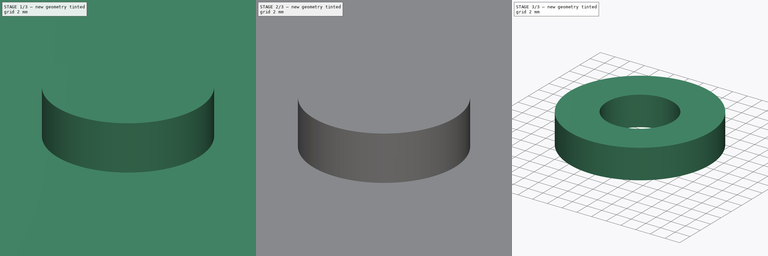
[diagram: build sequence overview — one tinted view per stage of 3, left to right]
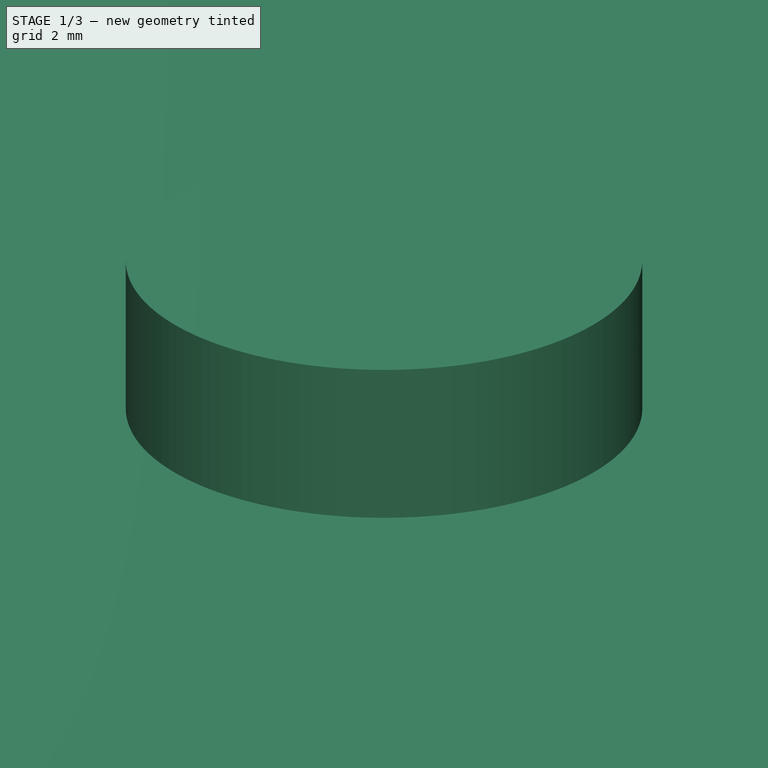
[diagram: stage 1 of 3 — iso view after this stage's code; geometry added in this stage tinted green]
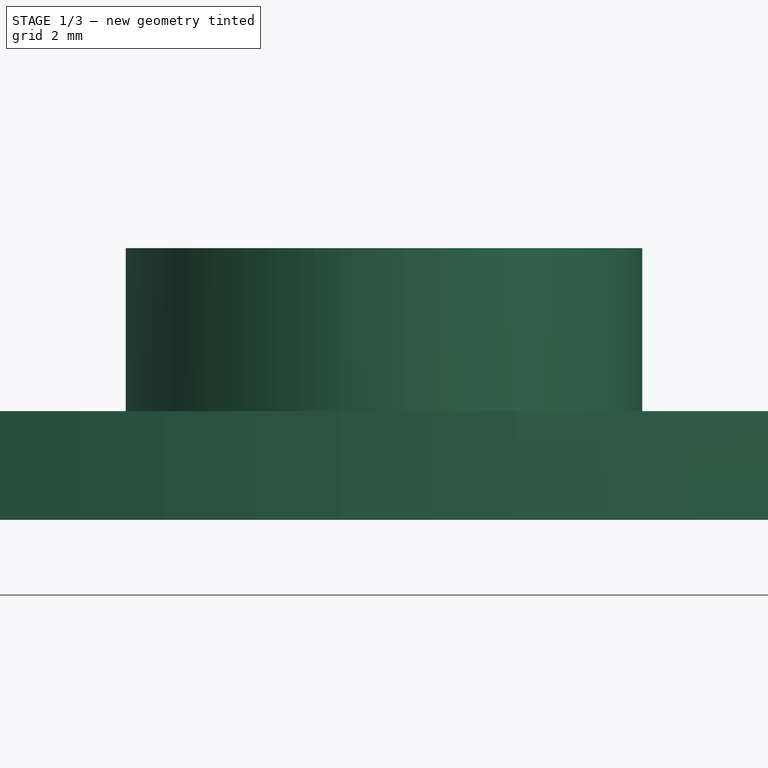
[diagram: stage 1 of 3 — front view after this stage's code; geometry added in this stage tinted green]
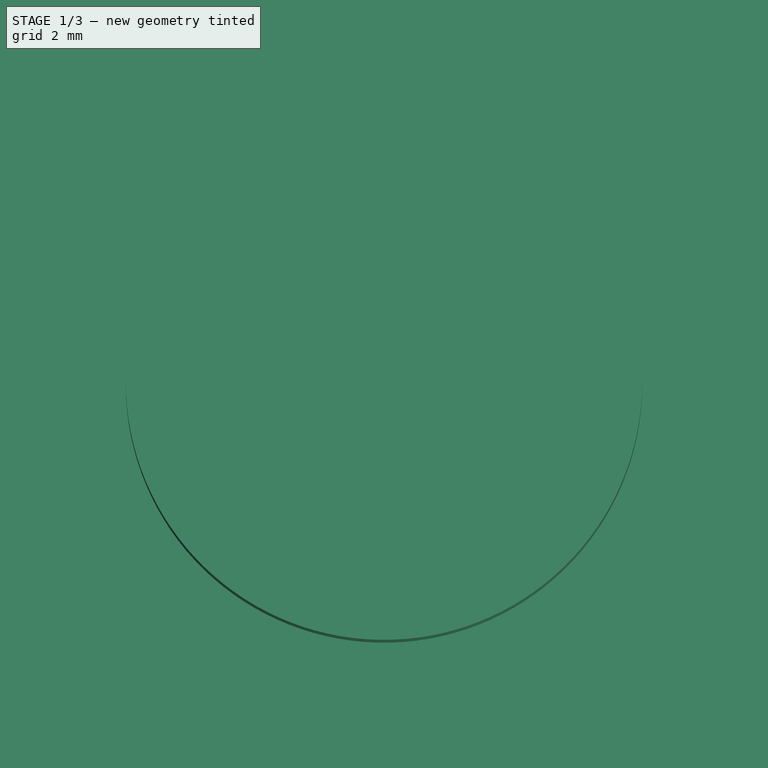
[diagram: stage 1 of 3 — top view after this stage's code; geometry added in this stage tinted green]
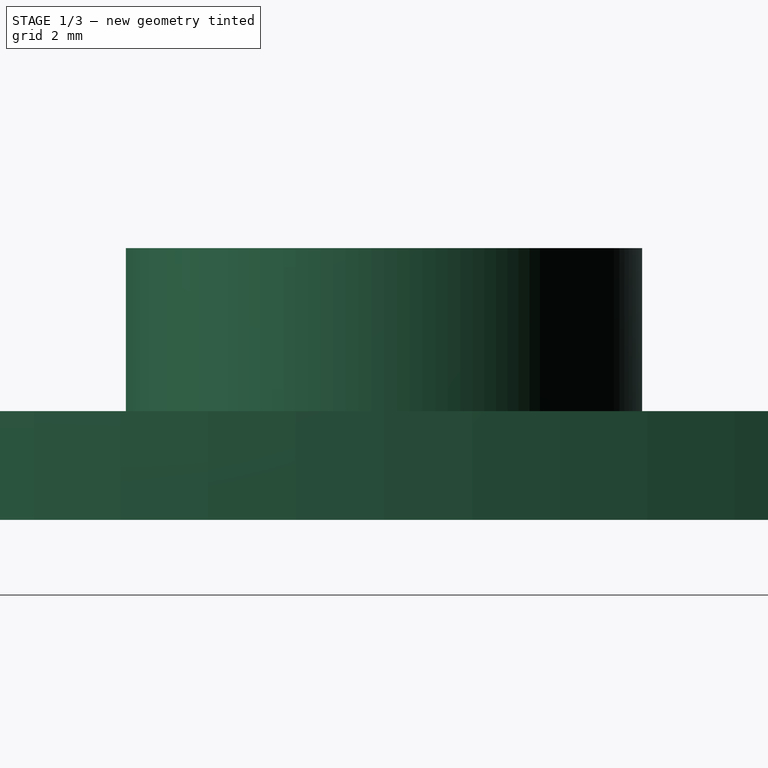
[diagram: stage 1 of 3 — right view after this stage's code; geometry added in this stage tinted green]
FCSTD DOCUMENT  (FreeCAD 0.19R24267 (Git))
Label: insert_empty
License: All rights reserved
LicenseURL: http://en.wikipedia.org/wiki/All_rights_reserved
objects: Sketcher::SketchObject×3, PartDesign::Body×3, PartDesign::Pad×2, PartDesign::Boolean×2, PartDesign::Revolution×1
note: 14 computed .brp shape members not serialized (recipe doc carries the construction recipe); baked Part::Feature solids carry a one-line shape summary decoded from their .brp

FEATURE [Sketcher::SketchObject] Sketch001
  FullyConstrained = true
  MapMode = 5
  Support = -> [XY_Plane001]
  sketch-geometry (1):
    g0: Circle CenterX=0 CenterY=0 CenterZ=0 NormalX=0 NormalY=0 NormalZ=1 AngleXU=0 Radius=65
  constraints (2):
    c: Coincident(g0,g-1)
    c: Radius(g0) = 65
FEATURE [PartDesign::Pad] Pad
  Direction = (1,1,1)
  Length = 4
  Length2 = 100
  Profile = -> Sketch001
  Type = 0
FEATURE [Sketcher::SketchObject] Sketch002
  FullyConstrained = true
  MapMode = 5
  Support = -> [XY_Plane002]
  sketch-geometry (1):
    g0: Circle CenterX=0 CenterY=0 CenterZ=0 NormalX=0 NormalY=0 NormalZ=1 AngleXU=0 Radius=9.5
  constraints (2):
    c: Coincident(g0,g-1)
    c: Radius(g0) = 9.5
FEATURE [PartDesign::Pad] Pad001
  Direction = (1,1,1)
  Length = 10
  Length2 = 100
  Profile = -> Sketch002
  Type = 0
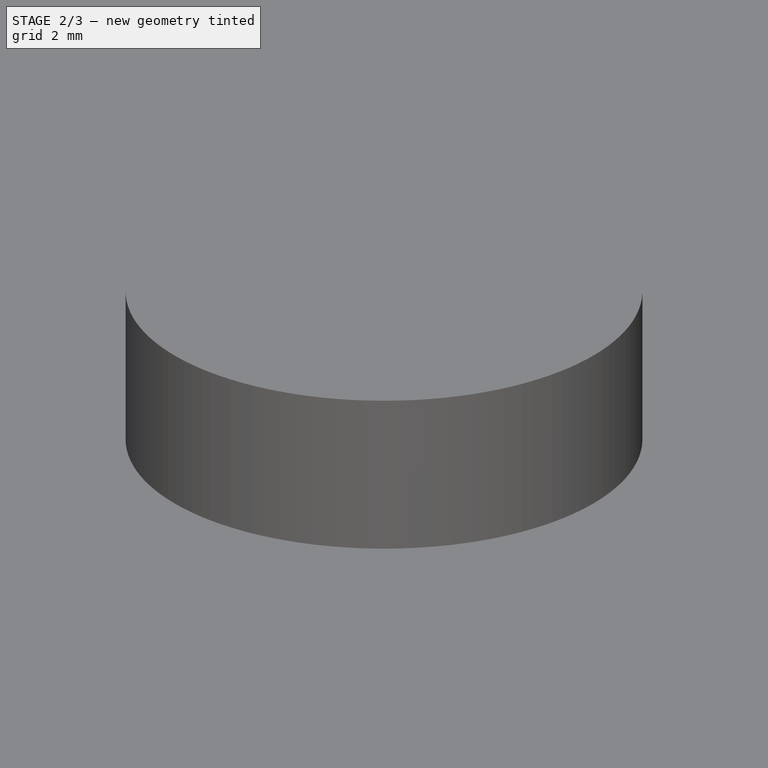
[diagram: stage 2 of 3 — iso view after this stage's code; geometry added in this stage tinted green]
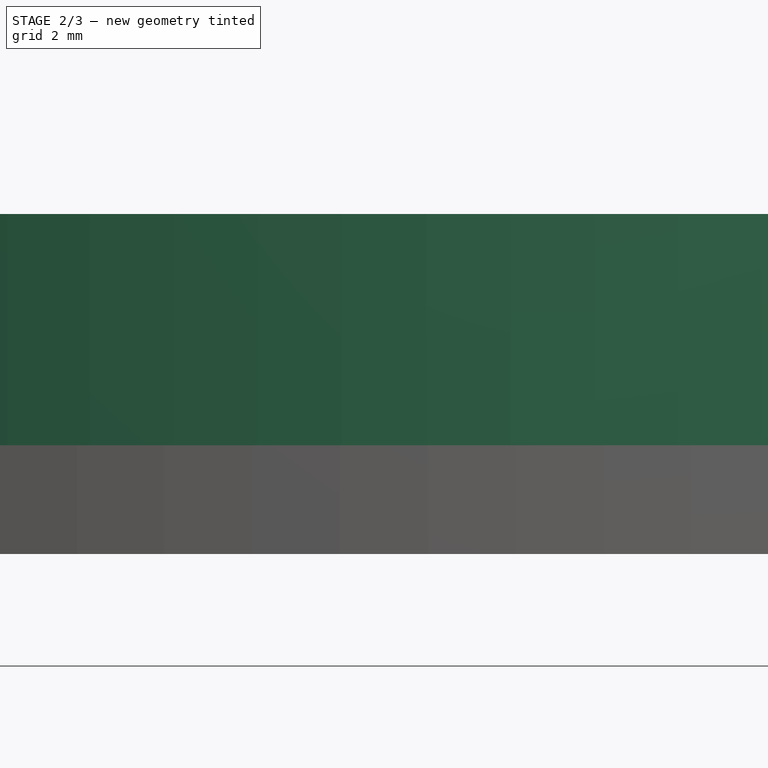
[diagram: stage 2 of 3 — front view after this stage's code; geometry added in this stage tinted green]
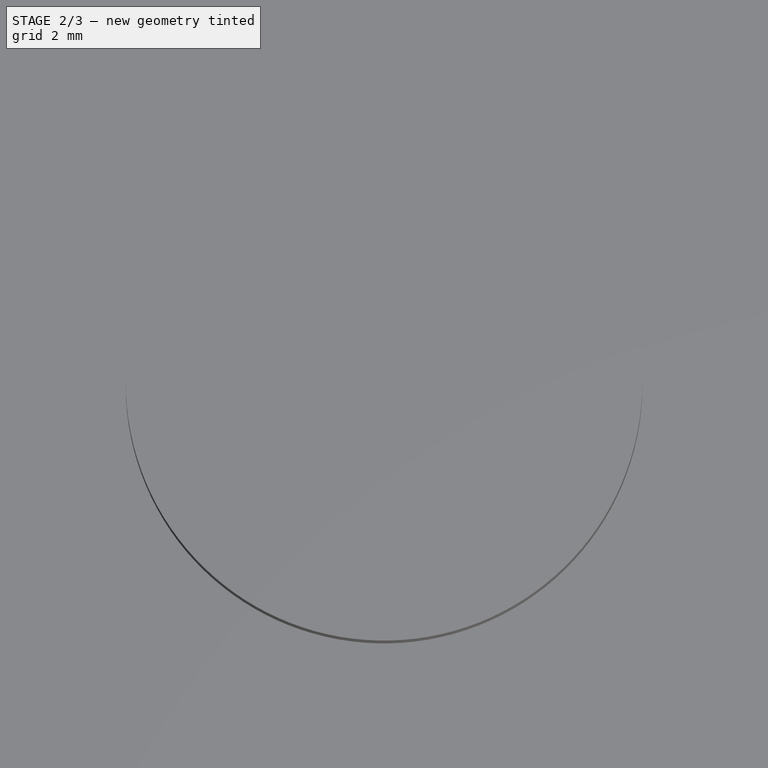
[diagram: stage 2 of 3 — top view after this stage's code; geometry added in this stage tinted green]
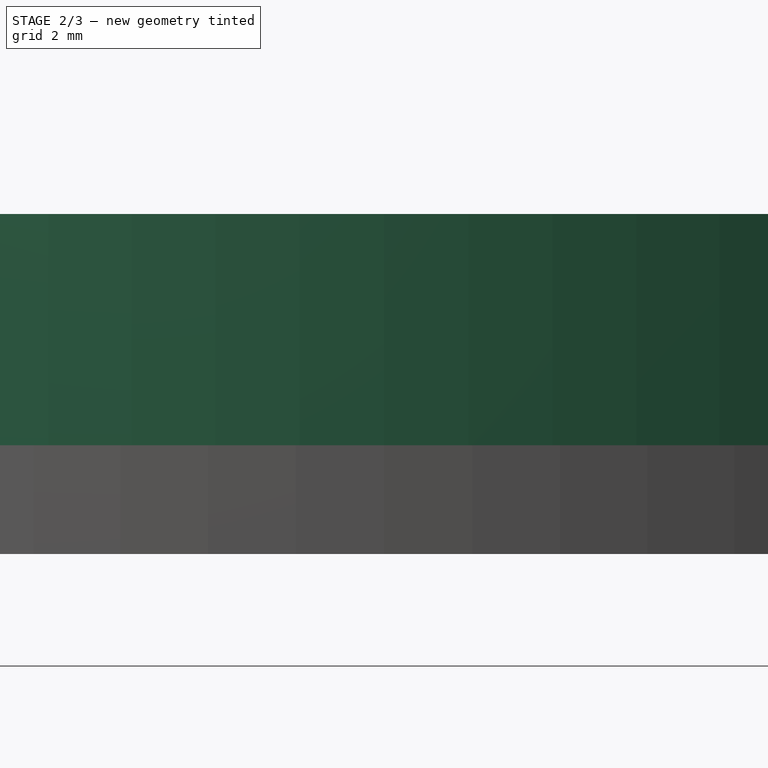
[diagram: stage 2 of 3 — right view after this stage's code; geometry added in this stage tinted green]
FEATURE [Sketcher::SketchObject] Sketch
  FullyConstrained = true
  MapMode = 5
  Placement = pos=(0,0,0) rot=(1,0,0;1.5708rad)
  Support = -> [XZ_Plane]
  sketch-geometry (25):
    g0: LineSegment StartX=4.5 StartY=10 StartZ=0 EndX=4.5 EndY=0 EndZ=0
    g1: LineSegment StartX=4.5 StartY=0 StartZ=0 EndX=56.7574 EndY=0 EndZ=0
    g2: LineSegment StartX=56.7574 StartY=0 StartZ=0 EndX=58.7574 EndY=2 EndZ=0
    g3: LineSegment StartX=58.7574 StartY=2 StartZ=0 EndX=61.2426 EndY=2 EndZ=0
    g4: LineSegment StartX=61.2426 StartY=2 StartZ=0 EndX=63.2426 EndY=0 EndZ=0
    g5: LineSegment StartX=63.2426 StartY=0 StartZ=0 EndX=95.2322 EndY=0 EndZ=0
    g6: LineSegment StartX=97 StartY=12.5 StartZ=0 EndX=96 EndY=12.5 EndZ=0
    g7: LineSegment StartX=55.9289 StartY=2 StartZ=0 EndX=9.5 EndY=2 EndZ=0
    g8: LineSegment StartX=9.5 StartY=2 StartZ=0 EndX=9.5 EndY=10 EndZ=0
    g9: LineSegment StartX=9.5 StartY=10 StartZ=0 EndX=4.5 EndY=10 EndZ=0
    g10: Circle CenterX=60 CenterY=-1 CenterZ=0 NormalX=0 NormalY=0 NormalZ=1 AngleXU=0 Radius=3
    g11: LineSegment StartX=56.7574 StartY=0 StartZ=0 EndX=63.2426 EndY=0 EndZ=0
    g12: LineSegment StartX=97 StartY=12.5 StartZ=0 EndX=97 EndY=1.76777 EndZ=0
    g13: LineSegment StartX=95.2322 StartY=0 StartZ=0 EndX=97 EndY=1.76777 EndZ=0
    g14: LineSegment StartX=55.9289 StartY=2 StartZ=0 EndX=57.9289 EndY=4 EndZ=0
    g15: LineSegment StartX=57.9289 StartY=4 StartZ=0 EndX=61.2426 EndY=4 EndZ=0
    g16: LineSegment StartX=61.2426 StartY=4 StartZ=0 EndX=61.2426 EndY=12.5 EndZ=0
    g17: LineSegment StartX=61.2426 StartY=2 StartZ=0 EndX=61.2426 EndY=4 EndZ=0
    g18: LineSegment StartX=61.2426 StartY=12.5 StartZ=0 EndX=62.2426 EndY=12.5 EndZ=0
    g19: LineSegment StartX=62.2426 StartY=12.5 StartZ=0 EndX=62.2426 EndY=2.41421 EndZ=0
    g20: LineSegment StartX=62.2426 StartY=2.41421 StartZ=0 EndX=63.6569 EndY=1 EndZ=0
    g21: LineSegment StartX=63.6569 StartY=1 StartZ=0 EndX=94.818 EndY=1 EndZ=0
    g22: LineSegment StartX=94.818 StartY=1 StartZ=0 EndX=96 EndY=2.18198 EndZ=0
    g23: LineSegment StartX=96 StartY=2.18198 StartZ=0 EndX=96 EndY=12.5 EndZ=0
    g24: LineSegment StartX=62.2426 StartY=12.5 StartZ=0 EndX=96 EndY=12.5 EndZ=0
  constraints (72):
    c: PointOnObject(g0,g-1)
    c: Vertical(g0)
    c: Coincident(g0,g1)
    c: Horizontal(g1)
    c: Coincident(g1,g2)
    c: Coincident(g2,g3)
    c: Horizontal(g3)
    c: Coincident(g3,g4)
    c: PointOnObject(g4,g-1)
    c: Coincident(g4,g5)
    c: Horizontal(g6)
    c: Horizontal(g7)
    c: Coincident(g7,g8)
    c: Vertical(g8)
    c: Coincident(g8,g9)
    c: Coincident(g9,g0)
    c: Horizontal(g9)
    c: Radius(g10) = 3
    c: Tangent(g10,g3)
    c: Tangent(g10,g4)
    c: Tangent(g10,g2)
    c: Coincident(g11,g1)
    c: Coincident(g11,g4)
    c: Angle(g11,g2) = 0.785398
    c: Angle(g4,g11) = 0.785398
    c: Distance(g10,g11) = 1
    c: DistanceX(g-1,g10) = 60
    c: DistanceX(g-1,g0) = 4.5
    c: Distance(g0) = 10
    c: Distance(g9) = 5
    c: Distance(g7,g1) = 2
    c: Horizontal(g5)
    c: Coincident(g12,g6)
    c: Vertical(g12)
    c: Coincident(g13,g5)
    c: Coincident(g13,g12)
    c: DistanceX(g-1,g12) = 97
    c: Distance(g13) = 2.5
    c: Angle(g13,g5) = 2.35619
    c: DistanceY(g-1,g6) = 12.5
    c: Coincident(g7,g14)
    c: Coincident(g14,g15)
    c: Horizontal(g15)
    c: Coincident(g15,g16)
    c: Vertical(g16)
    c: Coincident(g17,g3)
    c: Coincident(g17,g15)
    c: Vertical(g17)
    c: Angle(g14,g7) = 2.35619
    c: Distance(g17) = 2
    c: Distance(g1,g14) = 2
    c: Coincident(g16,g18)
    c: Coincident(g18,g19)
    c: Vertical(g19)
    c: Coincident(g19,g20)
    c: Coincident(g20,g21)
    c: Horizontal(g21)
    c: Coincident(g21,g22)
    c: Coincident(g22,g23)
    c: Coincident(g23,g6)
    c: Vertical(g23)
    c: Parallel(g22,g13)
    c: Distance(g21,g5) = 1
    c: Distance(g6) = 1
    c: Distance(g22,g13) = 1
    c: Horizontal(g18)
    c: Coincident(g24,g18)
    c: Coincident(g24,g6)
    c: Horizontal(g24)
    c: Distance(g18) = 1
    c: Distance(g19,g4) = 1
    c: Parallel(g20,g4)
FEATURE [PartDesign::Revolution] Revolution
  Angle = 360
  Axis = (0,2e-16,1)
  Base = (0,0,0)
  Placement = pos=(0,0,0) rot=(1,0,0;1.5708rad)
  Profile = -> Sketch
  ReferenceAxis = -> Sketch [V_Axis]
  Reversed = true
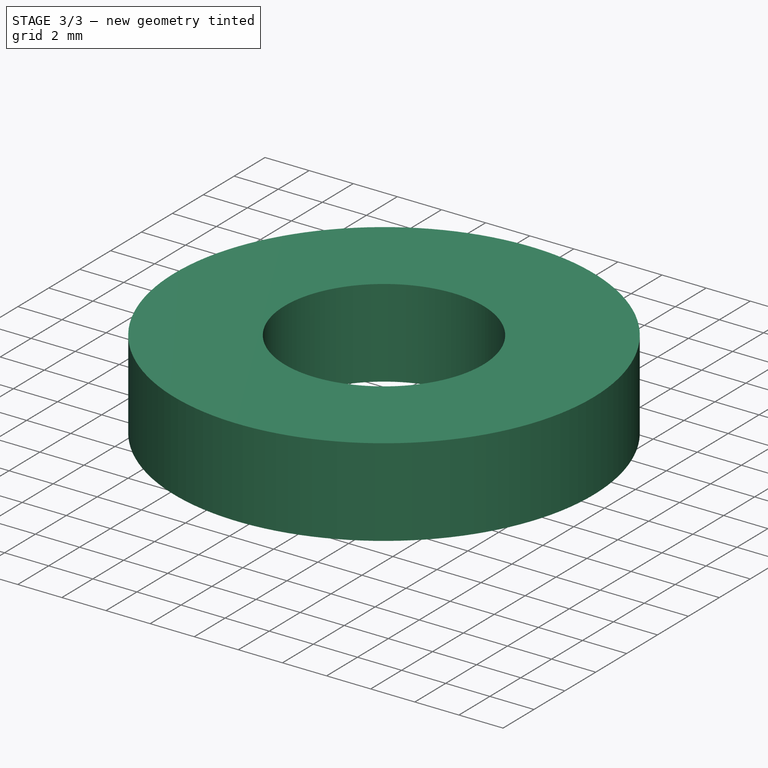
[diagram: stage 3 of 3 — iso view after this stage's code; geometry added in this stage tinted green]
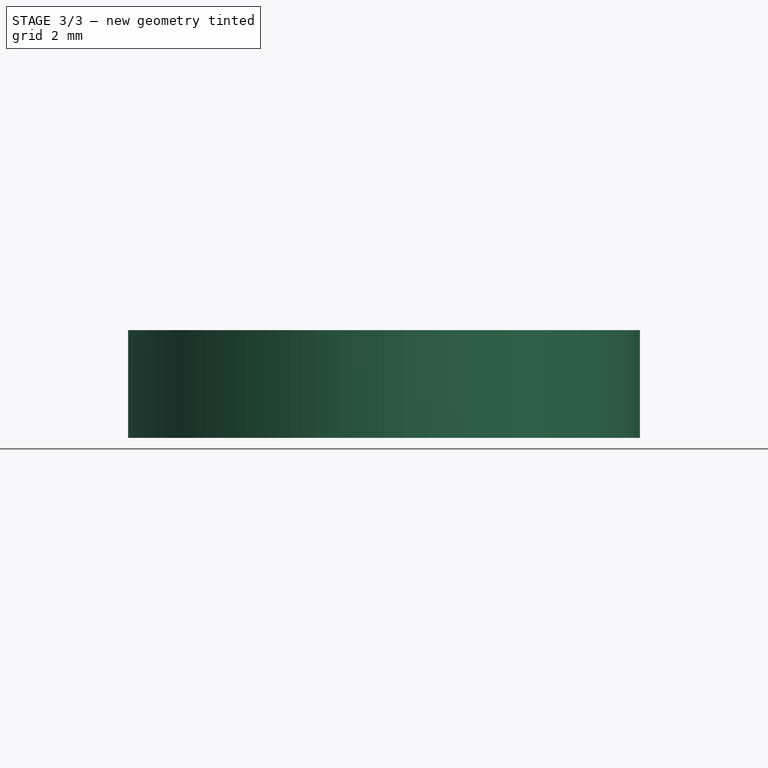
[diagram: stage 3 of 3 — front view after this stage's code; geometry added in this stage tinted green]
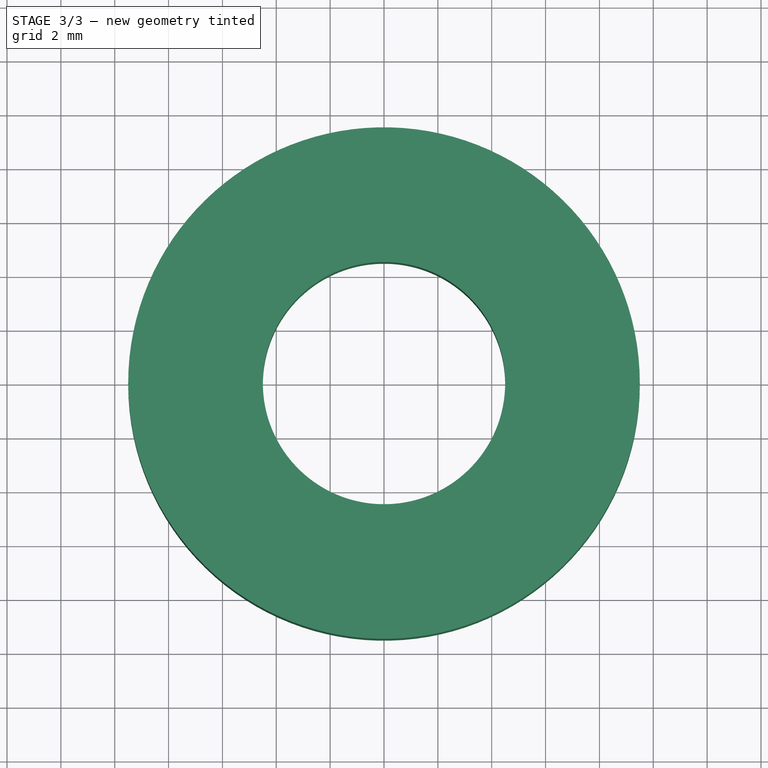
[diagram: stage 3 of 3 — top view after this stage's code; geometry added in this stage tinted green]
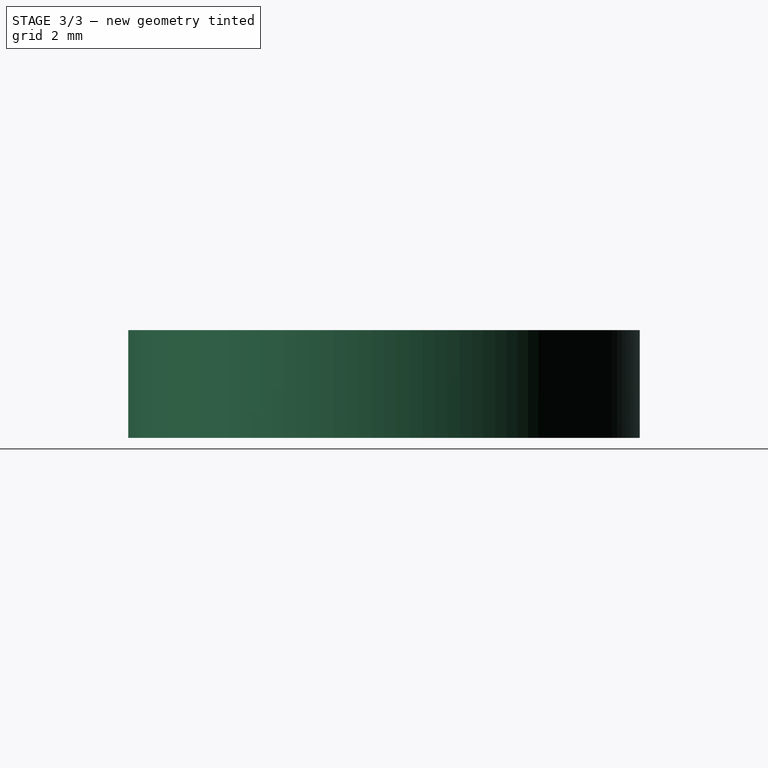
[diagram: stage 3 of 3 — right view after this stage's code; geometry added in this stage tinted green]
FEATURE [PartDesign::Body] Body001
  Group = -> [Sketch001,Pad]
  Origin = -> Origin001
  Tip = -> Pad
FEATURE [PartDesign::Boolean] Boolean
  BaseFeature = -> Revolution
  Group = -> [Body001]
  Type = 2
FEATURE [PartDesign::Body] Body002
  Group = -> [Sketch002,Pad001]
  Origin = -> Origin002
  Tip = -> Pad001
FEATURE [PartDesign::Boolean] Boolean001
  BaseFeature = -> Boolean
  Group = -> [Body002]
  Type = 2
FEATURE [PartDesign::Body] Body
  Group = -> [Sketch,Revolution,Boolean,Boolean001]
  Origin = -> Origin
  Tip = -> Boolean001
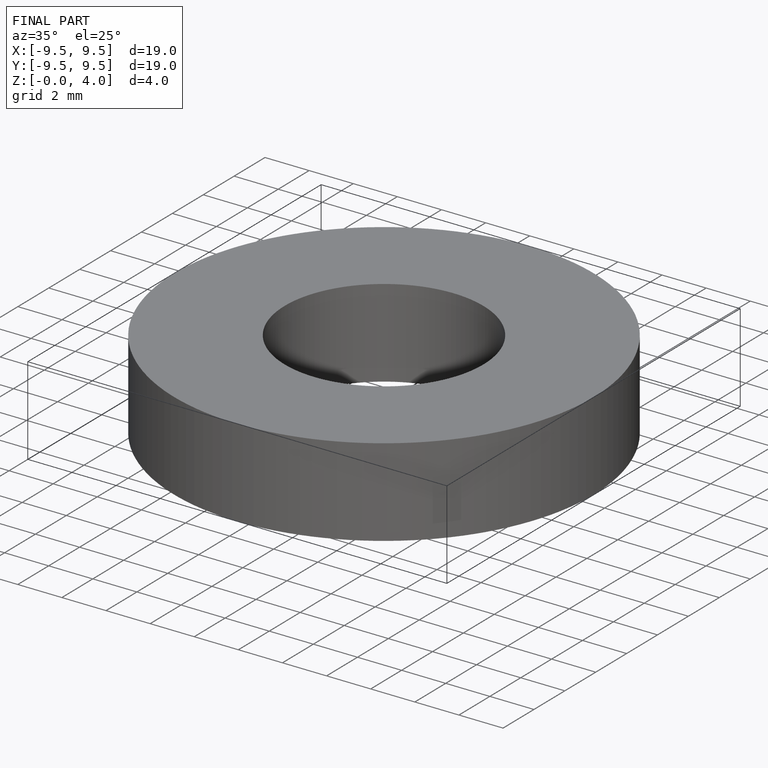
[diagram: finished part — iso view with bounding-box wireframe]
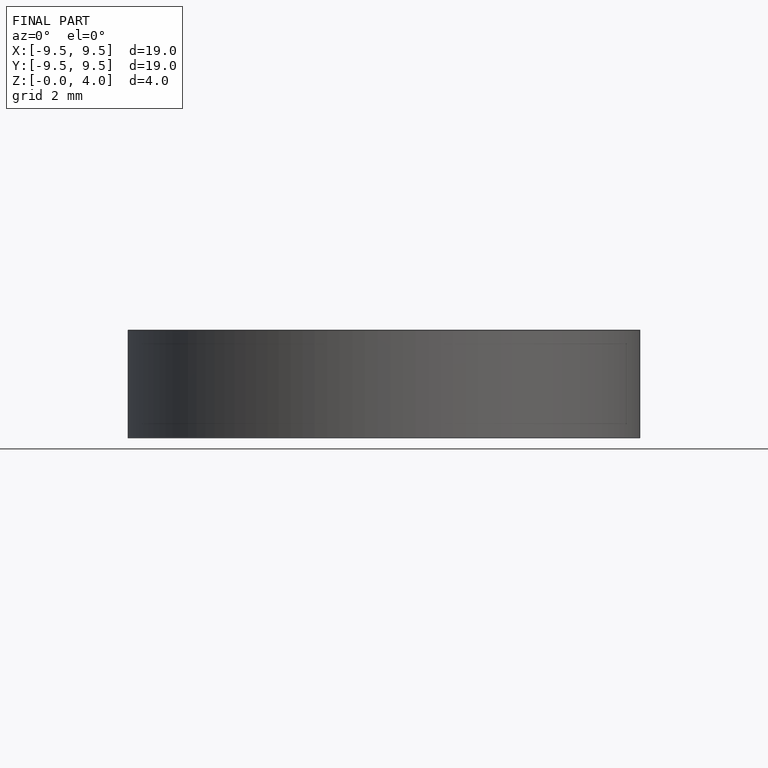
[diagram: finished part — front view with bounding-box wireframe]
